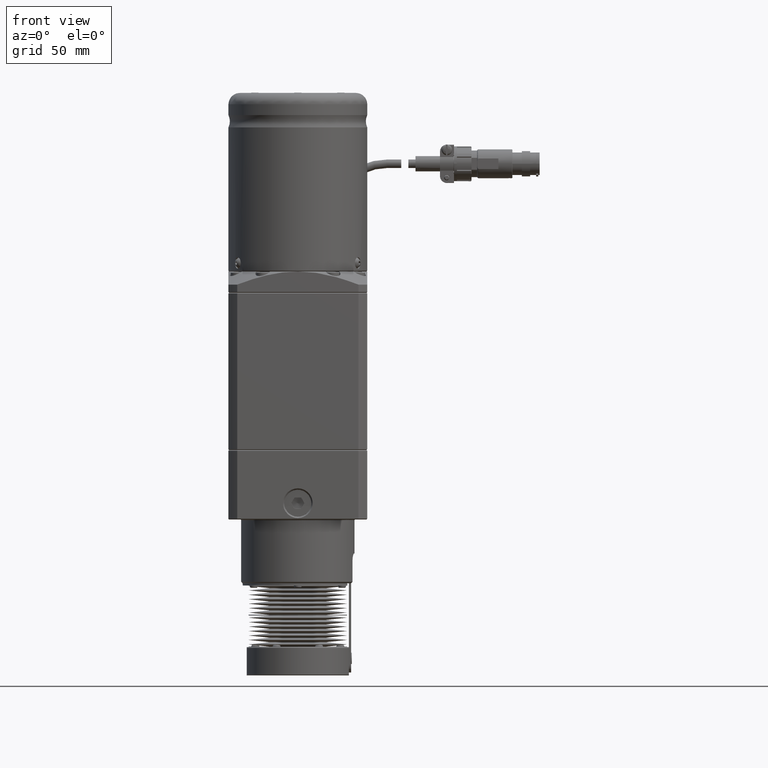
[diagram: clean part render]
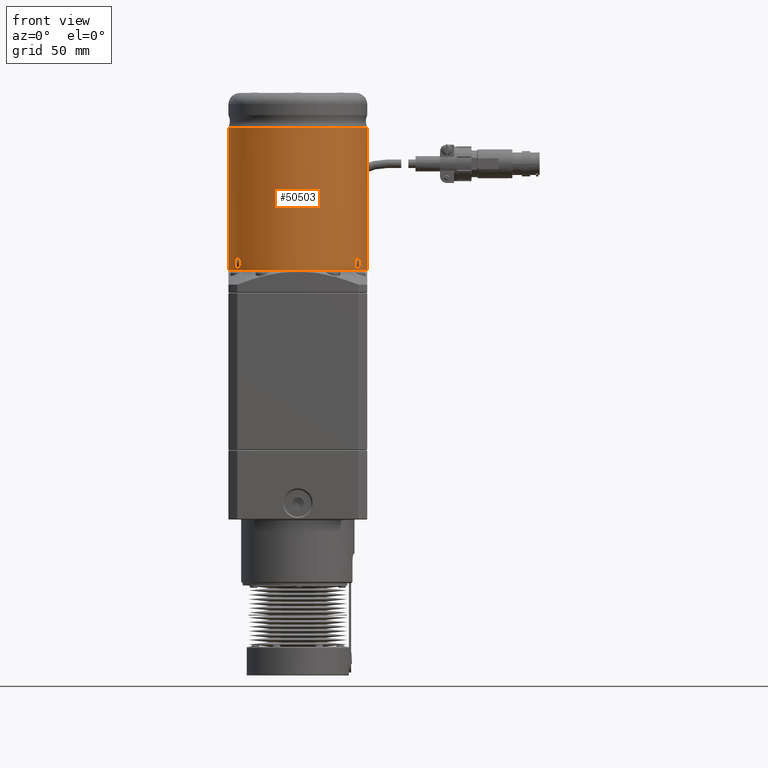
[diagram: same view with one face highlighted and labeled with its STEP entity id]
A machine part, front view. The second image highlights one B-rep face of the part: STEP entity #50503.
In plain terms, the highlighted cylindrical surface (partial cylindrical patch) has radius 49 mm, axis along (0, 0, 1).
Its self-contained STEP definition (entity closure, byte-faithful):
#1225=CYLINDRICAL_SURFACE('',#54643,49.);
#1784=B_SPLINE_CURVE_WITH_KNOTS('',3,(#81646,#81647,#81648,#81649,#81650,
#81651,#81652,#81653,#81654,#81655,#81656,#81657,#81658,#81659,#81660,#81661,
#81662,#81663),.UNSPECIFIED.,.F.,.F.,(4,2,2,2,2,2,2,2,4),(0.6029866462306,
0.753733194215937,0.904479742201273,1.05522651733124,1.2059732924612,1.35672006759116,
1.50746684272113,1.65821339070646,1.8089599386918),.UNSPECIFIED.);
#1785=B_SPLINE_CURVE_WITH_KNOTS('',3,(#81664,#81665,#81666,#81667,#81668,
#81669,#81670,#81671,#81672,#81673,#81674,#81675,#81676,#81677,#81678,#81679,
#81680,#81681,#81682),.UNSPECIFIED.,.F.,.F.,(4,2,2,2,3,2,2,2,4),(1.8089599386918,
1.95970648667714,2.11045303466247,2.26119980979244,2.4119465849224,2.56269336005237,
2.71344013518233,2.86418668316767,3.014933231153),.UNSPECIFIED.);
#1786=B_SPLINE_CURVE_WITH_KNOTS('',3,(#81685,#81686,#81687,#81688,#81689,
#81690,#81691,#81692,#81693,#81694,#81695,#81696,#81697,#81698,#81699,#81700,
#81701,#81702),.UNSPECIFIED.,.F.,.F.,(4,2,2,2,2,2,2,2,4),(0.602986646230601,
0.753733194215937,0.904479742201274,1.05522651733124,1.2059732924612,1.35672006759116,
1.50746684272113,1.65821339070646,1.8089599386918),.UNSPECIFIED.);
#1787=B_SPLINE_CURVE_WITH_KNOTS('',3,(#81703,#81704,#81705,#81706,#81707,
#81708,#81709,#81710,#81711,#81712,#81713,#81714,#81715,#81716,#81717,#81718,
#81719,#81720,#81721),.UNSPECIFIED.,.F.,.F.,(4,2,2,2,3,2,2,2,4),(1.8089599386918,
1.95970648667714,2.11045303466247,2.26119980979244,2.4119465849224,2.56269336005237,
2.71344013518233,2.86418668316767,3.014933231153),.UNSPECIFIED.);
#1788=B_SPLINE_CURVE_WITH_KNOTS('',3,(#81724,#81725,#81726,#81727,#81728,
#81729,#81730,#81731,#81732,#81733,#81734,#81735,#81736,#81737,#81738,#81739,
#81740,#81741),.UNSPECIFIED.,.F.,.F.,(4,2,2,2,2,2,2,2,4),(0.6029866462306,
0.753733194215937,0.904479742201273,1.05522651733124,1.2059732924612,1.35672006759116,
1.50746684272113,1.65821339070646,1.8089599386918),.UNSPECIFIED.);
#1789=B_SPLINE_CURVE_WITH_KNOTS('',3,(#81742,#81743,#81744,#81745,#81746,
#81747,#81748,#81749,#81750,#81751,#81752,#81753,#81754,#81755,#81756,#81757,
#81758,#81759,#81760),.UNSPECIFIED.,.F.,.F.,(4,2,2,2,3,2,2,2,4),(1.8089599386918,
1.95970648667714,2.11045303466247,2.26119980979244,2.4119465849224,2.56269336005237,
2.71344013518233,2.86418668316767,3.014933231153),.UNSPECIFIED.);
#1790=B_SPLINE_CURVE_WITH_KNOTS('',3,(#81763,#81764,#81765,#81766,#81767,
#81768,#81769,#81770,#81771,#81772,#81773,#81774,#81775,#81776,#81777,#81778,
#81779,#81780),.UNSPECIFIED.,.F.,.F.,(4,2,2,2,2,2,2,2,4),(0.6029866462306,
0.753733194215937,0.904479742201273,1.05522651733124,1.2059732924612,1.35672006759116,
1.50746684272113,1.65821339070646,1.8089599386918),.UNSPECIFIED.);
#1791=B_SPLINE_CURVE_WITH_KNOTS('',3,(#81781,#81782,#81783,#81784,#81785,
#81786,#81787,#81788,#81789,#81790,#81791,#81792,#81793,#81794,#81795,#81796,
#81797,#81798,#81799),.UNSPECIFIED.,.F.,.F.,(4,2,2,2,3,2,2,2,4),(1.8089599386918,
1.95970648667714,2.11045303466247,2.26119980979244,2.4119465849224,2.56269336005237,
2.71344013518233,2.86418668316767,3.014933231153),.UNSPECIFIED.);
#2519=FACE_BOUND('',#7226,.T.);
#2520=FACE_BOUND('',#7227,.T.);
#2521=FACE_BOUND('',#7228,.T.);
#2522=FACE_BOUND('',#7229,.T.);
#4129=FACE_OUTER_BOUND('',#7225,.T.);
#7225=EDGE_LOOP('',(#39428,#39429,#39430,#39431));
#7226=EDGE_LOOP('',(#39432,#39433));
#7227=EDGE_LOOP('',(#39434,#39435));
#7228=EDGE_LOOP('',(#39436,#39437));
#7229=EDGE_LOOP('',(#39438,#39439));
#10777=LINE('',#79789,#14999);
#10821=LINE('',#79963,#15043);
#14999=VECTOR('',#62907,10.);
#15043=VECTOR('',#63011,10.);
#18515=CIRCLE('',#54642,49.);
#18516=CIRCLE('',#54644,49.);
#21625=VERTEX_POINT('',#79787);
#21626=VERTEX_POINT('',#79788);
#21683=VERTEX_POINT('',#79947);
#21684=VERTEX_POINT('',#79962);
#22100=VERTEX_POINT('',#81644);
#22101=VERTEX_POINT('',#81645);
#22102=VERTEX_POINT('',#81683);
#22103=VERTEX_POINT('',#81684);
#22104=VERTEX_POINT('',#81722);
#22105=VERTEX_POINT('',#81723);
#22106=VERTEX_POINT('',#81761);
#22107=VERTEX_POINT('',#81762);
#27636=EDGE_CURVE('',#21625,#21626,#10777,.T.);
#27704=EDGE_CURVE('',#21684,#21683,#10821,.T.);
#28371=EDGE_CURVE('',#21625,#21683,#18515,.T.);
#28372=EDGE_CURVE('',#21684,#21626,#18516,.T.);
#28373=EDGE_CURVE('',#22100,#22101,#1784,.T.);
#28374=EDGE_CURVE('',#22101,#22100,#1785,.T.);
#28375=EDGE_CURVE('',#22102,#22103,#1786,.T.);
#28376=EDGE_CURVE('',#22103,#22102,#1787,.T.);
#28377=EDGE_CURVE('',#22104,#22105,#1788,.T.);
#28378=EDGE_CURVE('',#22105,#22104,#1789,.T.);
#28379=EDGE_CURVE('',#22106,#22107,#1790,.T.);
#28380=EDGE_CURVE('',#22107,#22106,#1791,.T.);
#39428=ORIENTED_EDGE('',*,*,#27704,.T.);
#39429=ORIENTED_EDGE('',*,*,#28371,.F.);
#39430=ORIENTED_EDGE('',*,*,#27636,.T.);
#39431=ORIENTED_EDGE('',*,*,#28372,.F.);
#39432=ORIENTED_EDGE('',*,*,#28373,.T.);
#39433=ORIENTED_EDGE('',*,*,#28374,.T.);
#39434=ORIENTED_EDGE('',*,*,#28375,.T.);
#39435=ORIENTED_EDGE('',*,*,#28376,.T.);
#39436=ORIENTED_EDGE('',*,*,#28377,.T.);
#39437=ORIENTED_EDGE('',*,*,#28378,.T.);
#39438=ORIENTED_EDGE('',*,*,#28379,.T.);
#39439=ORIENTED_EDGE('',*,*,#28380,.T.);
#50503=ADVANCED_FACE('',(#4129,#2519,#2520,#2521,#2522),#1225,.T.);
#54642=AXIS2_PLACEMENT_3D('',#81641,#64419,#64420);
#54643=AXIS2_PLACEMENT_3D('',#81642,#64421,#64422);
#54644=AXIS2_PLACEMENT_3D('',#81643,#64423,#64424);
#62907=DIRECTION('',(-4.63500776867871E-15,-6.01506440231022E-30,-1.));
#63011=DIRECTION('',(4.63500776867871E-15,6.01506440231022E-30,1.));
#64419=DIRECTION('center_axis',(4.63500776867871E-15,6.01506440231022E-30,
1.));
#64420=DIRECTION('ref_axis',(0.866025403784437,-0.500000000000003,-4.01403447441398E-15));
#64421=DIRECTION('center_axis',(4.63500776867871E-15,6.01506440231022E-30,
1.));
#64422=DIRECTION('ref_axis',(-3.89710939256177E-15,-1.,1.2246467991476E-16));
#64423=DIRECTION('center_axis',(-4.63500776867871E-15,-6.01506440231022E-30,
-1.));
#64424=DIRECTION('ref_axis',(0.500000000000003,0.866025403784437,-2.43996856425411E-15));
#79787=CARTESIAN_POINT('',(-14.9999999999992,46.6476151587625,321.64110105646));
#79788=CARTESIAN_POINT('',(-14.9999999999997,46.6476151587625,220.5));
#79789=CARTESIAN_POINT('',(-14.9999999999995,46.6476151587625,270.82055052823));
#79947=CARTESIAN_POINT('',(15.0000000000007,46.6476151587624,321.641101056459));
#79962=CARTESIAN_POINT('',(15.0000000000003,46.6476151587624,220.5));
#79963=CARTESIAN_POINT('',(15.0000000000005,46.6476151587624,270.82055052823));
#81641=CARTESIAN_POINT('Origin',(6.02301821748575E-13,1.1306595443113E-27,
321.64110105646));
#81642=CARTESIAN_POINT('Origin',(3.66748175241701E-13,8.24975943538161E-28,
270.82055052823));
#81643=CARTESIAN_POINT('Origin',(1.33512032619167E-13,5.22027163286049E-28,
220.5));
#81644=CARTESIAN_POINT('',(-42.4352447854374,-24.4999999999999,222.));
#81645=CARTESIAN_POINT('',(-42.4352447854374,-24.4999999999998,230.));
#81646=CARTESIAN_POINT('Ctrl Pts',(-42.4352447854374,-24.4999999999999,
222.));
#81647=CARTESIAN_POINT('Ctrl Pts',(-42.6864890320797,-24.0648321997062,
222.));
#81648=CARTESIAN_POINT('Ctrl Pts',(-42.9470235365905,-23.596529095822,222.10046819762));
#81649=CARTESIAN_POINT('Ctrl Pts',(-43.4130703834753,-22.7276997495388,
222.508752596592));
#81650=CARTESIAN_POINT('Ctrl Pts',(-43.6189719581596,-22.327376543871,222.816556442735));
#81651=CARTESIAN_POINT('Ctrl Pts',(-43.9384351013506,-21.6919427263675,
223.526589842712));
#81652=CARTESIAN_POINT('Ctrl Pts',(-44.0733903845622,-21.4144384073587,
223.976230459374));
#81653=CARTESIAN_POINT('Ctrl Pts',(-44.250790308477,-21.0454144527645,224.961681385344));
#81654=CARTESIAN_POINT('Ctrl Pts',(-44.293616539615,-20.9541292790117,225.497510749567));
#81655=CARTESIAN_POINT('Ctrl Pts',(-44.293616539615,-20.9541292790117,226.502489250434));
#81656=CARTESIAN_POINT('Ctrl Pts',(-44.250790308477,-21.0454144527645,227.038318614656));
#81657=CARTESIAN_POINT('Ctrl Pts',(-44.0733903845622,-21.4144384073588,
228.023769540627));
#81658=CARTESIAN_POINT('Ctrl Pts',(-43.9384351013506,-21.6919427263675,
228.473410157289));
#81659=CARTESIAN_POINT('Ctrl Pts',(-43.6189719581595,-22.327376543871,229.183443557266));
#81660=CARTESIAN_POINT('Ctrl Pts',(-43.4130703834753,-22.7276997495388,
229.491247403408));
#81661=CARTESIAN_POINT('Ctrl Pts',(-42.9470235365905,-23.596529095822,229.899531802381));
#81662=CARTESIAN_POINT('Ctrl Pts',(-42.6864890320796,-24.0648321997062,
230.));
#81663=CARTESIAN_POINT('Ctrl Pts',(-42.4352447854374,-24.4999999999999,
230.));
#81664=CARTESIAN_POINT('Ctrl Pts',(-42.4352447854374,-24.4999999999999,
230.));
#81665=CARTESIAN_POINT('Ctrl Pts',(-42.1840005387952,-24.9351678002936,
230.));
#81666=CARTESIAN_POINT('Ctrl Pts',(-41.9087054064159,-25.3949488517044,
229.899531802381));
#81667=CARTESIAN_POINT('Ctrl Pts',(-41.3893005444236,-26.2329719336019,
229.491247403408));
#81668=CARTESIAN_POINT('Ctrl Pts',(-41.145561265933,-26.6114495307916,229.183443557266));
#81669=CARTESIAN_POINT('Ctrl Pts',(-40.7549910091467,-27.2058296371196,
228.473410157289));
#81670=CARTESIAN_POINT('Ctrl Pts',(-40.582142860831,-27.4614565002601,228.023769540627));
#81671=CARTESIAN_POINT('Ctrl Pts',(-40.3512587035048,-27.7996013182969,
227.038318614656));
#81672=CARTESIAN_POINT('Ctrl Pts',(-40.293616539615,-27.8823325092872,226.502489250434));
#81673=CARTESIAN_POINT('Ctrl Pts',(-40.293616539615,-27.8823325092872,226.));
#81674=CARTESIAN_POINT('Ctrl Pts',(-40.293616539615,-27.8823325092872,225.497510749567));
#81675=CARTESIAN_POINT('Ctrl Pts',(-40.3512587035048,-27.7996013182969,
224.961681385344));
#81676=CARTESIAN_POINT('Ctrl Pts',(-40.5821428608311,-27.4614565002602,
223.976230459373));
#81677=CARTESIAN_POINT('Ctrl Pts',(-40.7549910091467,-27.2058296371196,
223.526589842712));
#81678=CARTESIAN_POINT('Ctrl Pts',(-41.145561265933,-26.6114495307916,222.816556442735));
#81679=CARTESIAN_POINT('Ctrl Pts',(-41.3893005444236,-26.2329719336019,
222.508752596592));
#81680=CARTESIAN_POINT('Ctrl Pts',(-41.9087054064159,-25.3949488517044,
222.10046819762));
#81681=CARTESIAN_POINT('Ctrl Pts',(-42.1840005387952,-24.9351678002936,
222.));
#81682=CARTESIAN_POINT('Ctrl Pts',(-42.4352447854374,-24.4999999999999,
222.));
#81683=CARTESIAN_POINT('',(-42.4352447854373,24.5000000000001,222.));
#81684=CARTESIAN_POINT('',(-42.4352447854372,24.5000000000002,230.));
#81685=CARTESIAN_POINT('Ctrl Pts',(-42.4352447854373,24.5000000000001,222.));
#81686=CARTESIAN_POINT('Ctrl Pts',(-42.1840005387951,24.9351678002938,222.));
#81687=CARTESIAN_POINT('Ctrl Pts',(-41.9087054064157,25.3949488517047,222.10046819762));
#81688=CARTESIAN_POINT('Ctrl Pts',(-41.3893005444234,26.2329719336022,222.508752596592));
#81689=CARTESIAN_POINT('Ctrl Pts',(-41.1455612659328,26.6114495307919,222.816556442735));
#81690=CARTESIAN_POINT('Ctrl Pts',(-40.7549910091466,27.2058296371199,223.526589842712));
#81691=CARTESIAN_POINT('Ctrl Pts',(-40.5821428608309,27.4614565002604,223.976230459373));
#81692=CARTESIAN_POINT('Ctrl Pts',(-40.3512587035047,27.7996013182972,224.961681385344));
#81693=CARTESIAN_POINT('Ctrl Pts',(-40.2936165396148,27.8823325092874,225.497510749567));
#81694=CARTESIAN_POINT('Ctrl Pts',(-40.2936165396148,27.8823325092874,226.502489250434));
#81695=CARTESIAN_POINT('Ctrl Pts',(-40.3512587035047,27.7996013182972,227.038318614656));
#81696=CARTESIAN_POINT('Ctrl Pts',(-40.5821428608308,27.4614565002604,228.023769540627));
#81697=CARTESIAN_POINT('Ctrl Pts',(-40.7549910091465,27.2058296371199,228.473410157289));
#81698=CARTESIAN_POINT('Ctrl Pts',(-41.1455612659328,26.6114495307919,229.183443557266));
#81699=CARTESIAN_POINT('Ctrl Pts',(-41.3893005444234,26.2329719336022,229.491247403408));
#81700=CARTESIAN_POINT('Ctrl Pts',(-41.9087054064157,25.3949488517047,229.899531802381));
#81701=CARTESIAN_POINT('Ctrl Pts',(-42.184000538795,24.9351678002938,230.));
#81702=CARTESIAN_POINT('Ctrl Pts',(-42.4352447854373,24.5000000000001,230.));
#81703=CARTESIAN_POINT('Ctrl Pts',(-42.4352447854372,24.5000000000001,230.));
#81704=CARTESIAN_POINT('Ctrl Pts',(-42.6864890320795,24.0648321997064,230.));
#81705=CARTESIAN_POINT('Ctrl Pts',(-42.9470235365903,23.5965290958223,229.899531802381));
#81706=CARTESIAN_POINT('Ctrl Pts',(-43.4130703834751,22.7276997495391,229.491247403408));
#81707=CARTESIAN_POINT('Ctrl Pts',(-43.6189719581594,22.3273765438713,229.183443557266));
#81708=CARTESIAN_POINT('Ctrl Pts',(-43.9384351013504,21.6919427263678,228.473410157289));
#81709=CARTESIAN_POINT('Ctrl Pts',(-44.073390384562,21.414438407359,228.023769540627));
#81710=CARTESIAN_POINT('Ctrl Pts',(-44.2507903084769,21.0454144527648,227.038318614656));
#81711=CARTESIAN_POINT('Ctrl Pts',(-44.2936165396148,20.9541292790119,226.502489250434));
#81712=CARTESIAN_POINT('Ctrl Pts',(-44.2936165396148,20.9541292790119,226.));
#81713=CARTESIAN_POINT('Ctrl Pts',(-44.2936165396148,20.9541292790119,225.497510749567));
#81714=CARTESIAN_POINT('Ctrl Pts',(-44.2507903084769,21.0454144527648,224.961681385344));
#81715=CARTESIAN_POINT('Ctrl Pts',(-44.073390384562,21.414438407359,223.976230459373));
#81716=CARTESIAN_POINT('Ctrl Pts',(-43.9384351013505,21.6919427263678,223.526589842712));
#81717=CARTESIAN_POINT('Ctrl Pts',(-43.6189719581594,22.3273765438713,222.816556442735));
#81718=CARTESIAN_POINT('Ctrl Pts',(-43.4130703834751,22.7276997495391,222.508752596592));
#81719=CARTESIAN_POINT('Ctrl Pts',(-42.9470235365904,23.5965290958223,222.10046819762));
#81720=CARTESIAN_POINT('Ctrl Pts',(-42.6864890320795,24.0648321997064,222.));
#81721=CARTESIAN_POINT('Ctrl Pts',(-42.4352447854373,24.5000000000001,222.));
#81722=CARTESIAN_POINT('',(42.4352447854377,24.4999999999998,222.));
#81723=CARTESIAN_POINT('',(42.4352447854378,24.4999999999998,230.));
#81724=CARTESIAN_POINT('Ctrl Pts',(42.4352447854377,24.4999999999999,222.));
#81725=CARTESIAN_POINT('Ctrl Pts',(42.6864890320799,24.0648321997062,222.));
#81726=CARTESIAN_POINT('Ctrl Pts',(42.9470235365908,23.596529095822,222.100468197619));
#81727=CARTESIAN_POINT('Ctrl Pts',(43.4130703834756,22.7276997495388,222.508752596592));
#81728=CARTESIAN_POINT('Ctrl Pts',(43.6189719581599,22.327376543871,222.816556442734));
#81729=CARTESIAN_POINT('Ctrl Pts',(43.9384351013509,21.6919427263675,223.526589842711));
#81730=CARTESIAN_POINT('Ctrl Pts',(44.0733903845625,21.4144384073587,223.976230459373));
#81731=CARTESIAN_POINT('Ctrl Pts',(44.2507903084773,21.0454144527645,224.961681385344));
#81732=CARTESIAN_POINT('Ctrl Pts',(44.2936165396153,20.9541292790117,225.497510749567));
#81733=CARTESIAN_POINT('Ctrl Pts',(44.2936165396153,20.9541292790117,226.502489250433));
#81734=CARTESIAN_POINT('Ctrl Pts',(44.2507903084773,21.0454144527645,227.038318614656));
#81735=CARTESIAN_POINT('Ctrl Pts',(44.0733903845625,21.4144384073587,228.023769540627));
#81736=CARTESIAN_POINT('Ctrl Pts',(43.9384351013509,21.6919427263675,228.473410157288));
#81737=CARTESIAN_POINT('Ctrl Pts',(43.6189719581599,22.327376543871,229.183443557266));
#81738=CARTESIAN_POINT('Ctrl Pts',(43.4130703834756,22.7276997495388,229.491247403408));
#81739=CARTESIAN_POINT('Ctrl Pts',(42.9470235365909,23.596529095822,229.899531802381));
#81740=CARTESIAN_POINT('Ctrl Pts',(42.68648903208,24.0648321997062,230.));
#81741=CARTESIAN_POINT('Ctrl Pts',(42.4352447854378,24.4999999999999,230.));
#81742=CARTESIAN_POINT('Ctrl Pts',(42.4352447854378,24.4999999999999,230.));
#81743=CARTESIAN_POINT('Ctrl Pts',(42.1840005387955,24.9351678002936,230.));
#81744=CARTESIAN_POINT('Ctrl Pts',(41.9087054064162,25.3949488517044,229.899531802381));
#81745=CARTESIAN_POINT('Ctrl Pts',(41.3893005444239,26.2329719336019,229.491247403408));
#81746=CARTESIAN_POINT('Ctrl Pts',(41.1455612659333,26.6114495307916,229.183443557266));
#81747=CARTESIAN_POINT('Ctrl Pts',(40.7549910091471,27.2058296371196,228.473410157288));
#81748=CARTESIAN_POINT('Ctrl Pts',(40.5821428608314,27.4614565002601,228.023769540627));
#81749=CARTESIAN_POINT('Ctrl Pts',(40.3512587035052,27.7996013182969,227.038318614656));
#81750=CARTESIAN_POINT('Ctrl Pts',(40.2936165396153,27.8823325092872,226.502489250433));
#81751=CARTESIAN_POINT('Ctrl Pts',(40.2936165396153,27.8823325092872,226.));
#81752=CARTESIAN_POINT('Ctrl Pts',(40.2936165396153,27.8823325092872,225.497510749567));
#81753=CARTESIAN_POINT('Ctrl Pts',(40.3512587035052,27.7996013182969,224.961681385344));
#81754=CARTESIAN_POINT('Ctrl Pts',(40.5821428608314,27.4614565002601,223.976230459373));
#81755=CARTESIAN_POINT('Ctrl Pts',(40.754991009147,27.2058296371196,223.526589842712));
#81756=CARTESIAN_POINT('Ctrl Pts',(41.1455612659333,26.6114495307916,222.816556442734));
#81757=CARTESIAN_POINT('Ctrl Pts',(41.3893005444239,26.2329719336019,222.508752596592));
#81758=CARTESIAN_POINT('Ctrl Pts',(41.9087054064162,25.3949488517044,222.100468197619));
#81759=CARTESIAN_POINT('Ctrl Pts',(42.1840005387955,24.9351678002936,222.));
#81760=CARTESIAN_POINT('Ctrl Pts',(42.4352447854377,24.4999999999999,222.));
#81761=CARTESIAN_POINT('',(42.4352447854375,-24.5000000000001,222.));
#81762=CARTESIAN_POINT('',(42.4352447854376,-24.5000000000001,230.));
#81763=CARTESIAN_POINT('Ctrl Pts',(42.4352447854375,-24.5000000000002,222.));
#81764=CARTESIAN_POINT('Ctrl Pts',(42.1840005387953,-24.9351678002939,222.));
#81765=CARTESIAN_POINT('Ctrl Pts',(41.908705406416,-25.3949488517047,222.100468197619));
#81766=CARTESIAN_POINT('Ctrl Pts',(41.3893005444237,-26.2329719336022,222.508752596592));
#81767=CARTESIAN_POINT('Ctrl Pts',(41.1455612659331,-26.6114495307919,222.816556442734));
#81768=CARTESIAN_POINT('Ctrl Pts',(40.7549910091468,-27.2058296371199,223.526589842712));
#81769=CARTESIAN_POINT('Ctrl Pts',(40.5821428608312,-27.4614565002604,223.976230459373));
#81770=CARTESIAN_POINT('Ctrl Pts',(40.351258703505,-27.7996013182972,224.961681385344));
#81771=CARTESIAN_POINT('Ctrl Pts',(40.2936165396151,-27.8823325092875,225.497510749567));
#81772=CARTESIAN_POINT('Ctrl Pts',(40.2936165396151,-27.8823325092875,226.502489250433));
#81773=CARTESIAN_POINT('Ctrl Pts',(40.351258703505,-27.7996013182972,227.038318614656));
#81774=CARTESIAN_POINT('Ctrl Pts',(40.5821428608312,-27.4614565002604,228.023769540627));
#81775=CARTESIAN_POINT('Ctrl Pts',(40.7549910091469,-27.2058296371199,228.473410157289));
#81776=CARTESIAN_POINT('Ctrl Pts',(41.1455612659331,-26.6114495307919,229.183443557266));
#81777=CARTESIAN_POINT('Ctrl Pts',(41.3893005444237,-26.2329719336022,229.491247403408));
#81778=CARTESIAN_POINT('Ctrl Pts',(41.908705406416,-25.3949488517047,229.899531802381));
#81779=CARTESIAN_POINT('Ctrl Pts',(42.1840005387954,-24.9351678002939,230.));
#81780=CARTESIAN_POINT('Ctrl Pts',(42.4352447854376,-24.5000000000002,230.));
#81781=CARTESIAN_POINT('Ctrl Pts',(42.4352447854376,-24.5000000000002,230.));
#81782=CARTESIAN_POINT('Ctrl Pts',(42.6864890320798,-24.0648321997065,230.));
#81783=CARTESIAN_POINT('Ctrl Pts',(42.9470235365907,-23.5965290958223,229.899531802381));
#81784=CARTESIAN_POINT('Ctrl Pts',(43.4130703834755,-22.7276997495391,229.491247403408));
#81785=CARTESIAN_POINT('Ctrl Pts',(43.6189719581597,-22.3273765438713,229.183443557266));
#81786=CARTESIAN_POINT('Ctrl Pts',(43.9384351013508,-21.6919427263678,228.473410157288));
#81787=CARTESIAN_POINT('Ctrl Pts',(44.0733903845624,-21.4144384073591,228.023769540627));
#81788=CARTESIAN_POINT('Ctrl Pts',(44.2507903084772,-21.0454144527648,227.038318614656));
#81789=CARTESIAN_POINT('Ctrl Pts',(44.2936165396152,-20.954129279012,226.502489250433));
#81790=CARTESIAN_POINT('Ctrl Pts',(44.2936165396151,-20.954129279012,226.));
#81791=CARTESIAN_POINT('Ctrl Pts',(44.2936165396151,-20.954129279012,225.497510749567));
#81792=CARTESIAN_POINT('Ctrl Pts',(44.2507903084772,-21.0454144527648,224.961681385344));
#81793=CARTESIAN_POINT('Ctrl Pts',(44.0733903845623,-21.4144384073591,223.976230459373));
#81794=CARTESIAN_POINT('Ctrl Pts',(43.9384351013508,-21.6919427263678,223.526589842711));
#81795=CARTESIAN_POINT('Ctrl Pts',(43.6189719581597,-22.3273765438713,222.816556442734));
#81796=CARTESIAN_POINT('Ctrl Pts',(43.4130703834754,-22.7276997495391,222.508752596592));
#81797=CARTESIAN_POINT('Ctrl Pts',(42.9470235365907,-23.5965290958223,222.100468197619));
#81798=CARTESIAN_POINT('Ctrl Pts',(42.6864890320798,-24.0648321997065,222.));
#81799=CARTESIAN_POINT('Ctrl Pts',(42.4352447854376,-24.5000000000002,222.));